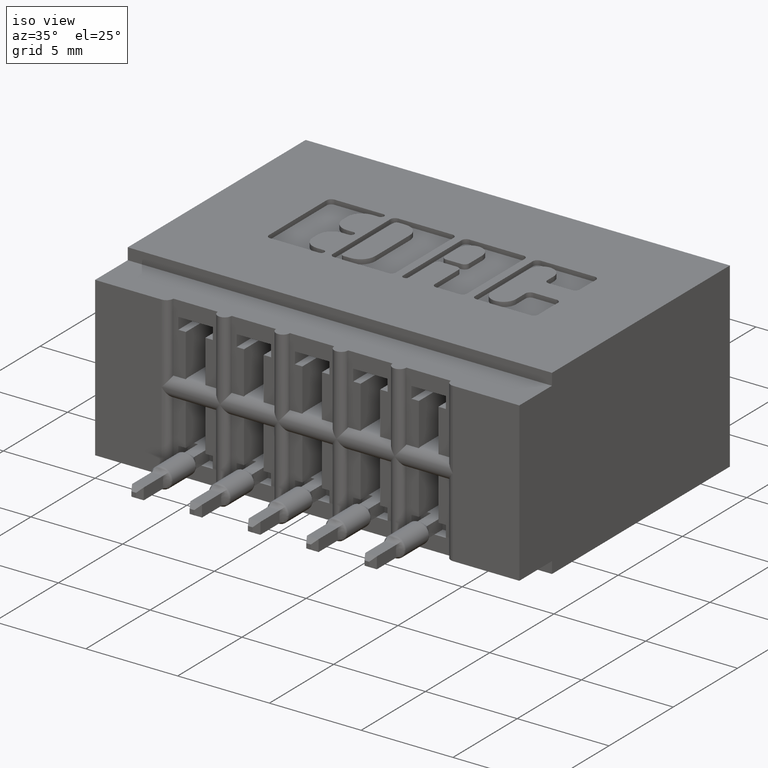
[diagram: clean part render]
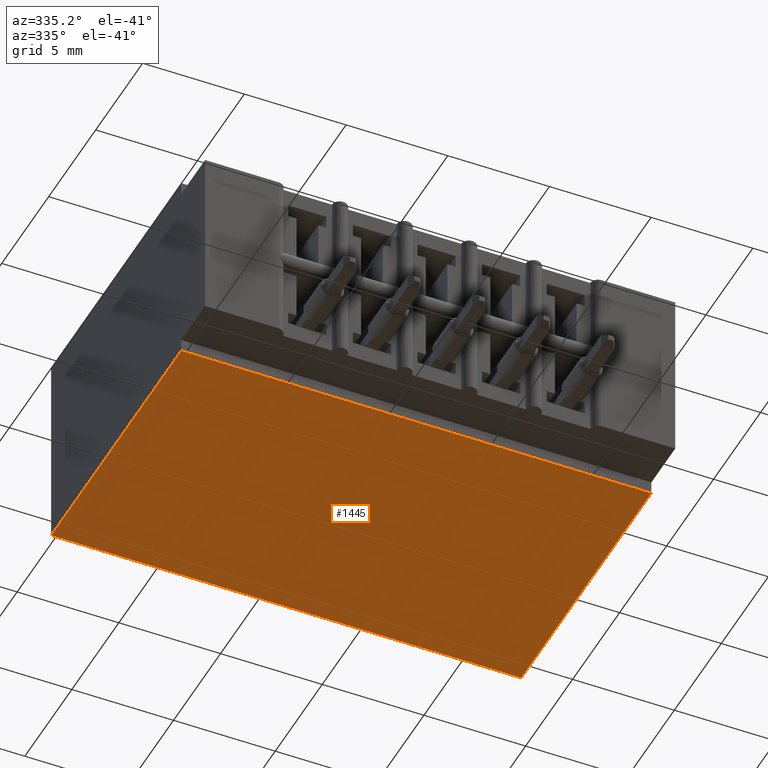
[diagram: tour spotlight — one face highlighted and labeled with its STEP entity id]
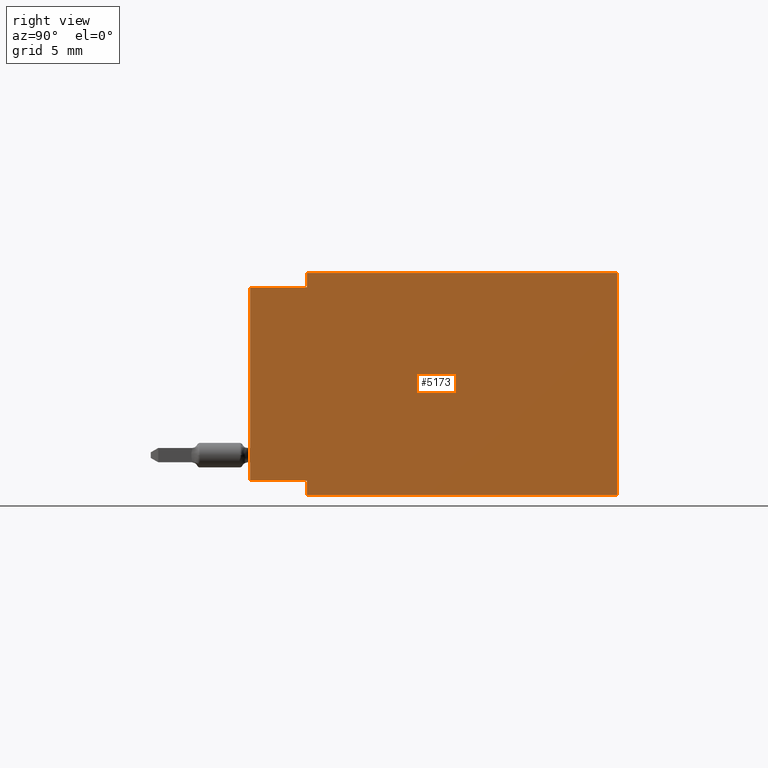
[diagram: tour spotlight — one face highlighted and labeled with its STEP entity id]
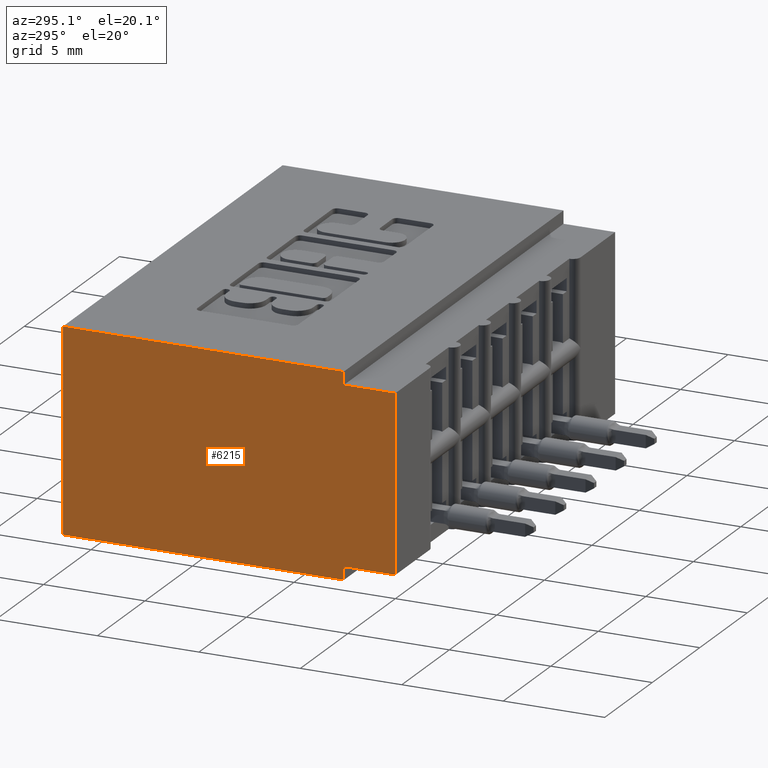
[diagram: tour spotlight — one face highlighted and labeled with its STEP entity id]
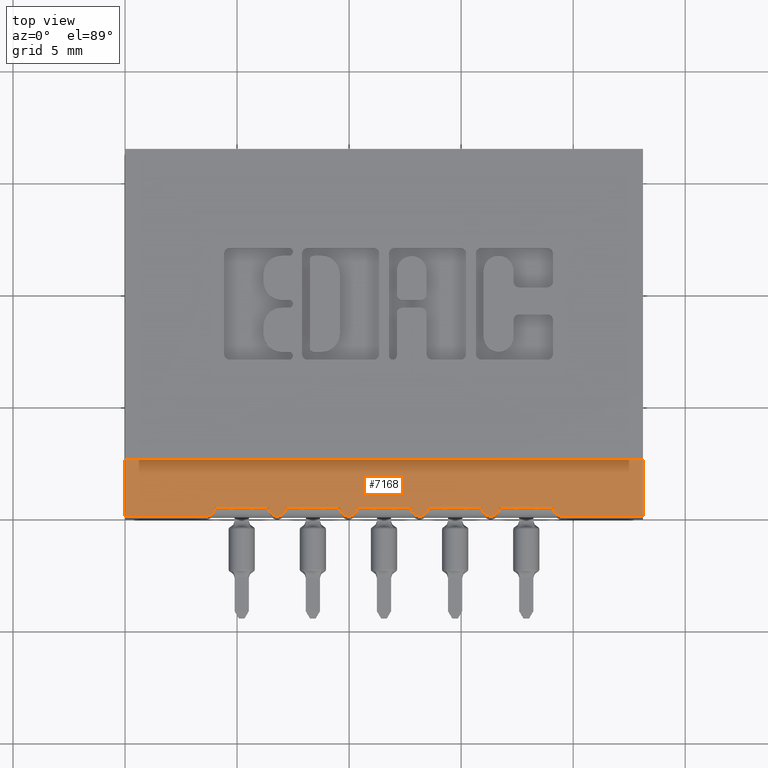
[diagram: tour spotlight — one face highlighted and labeled with its STEP entity id]
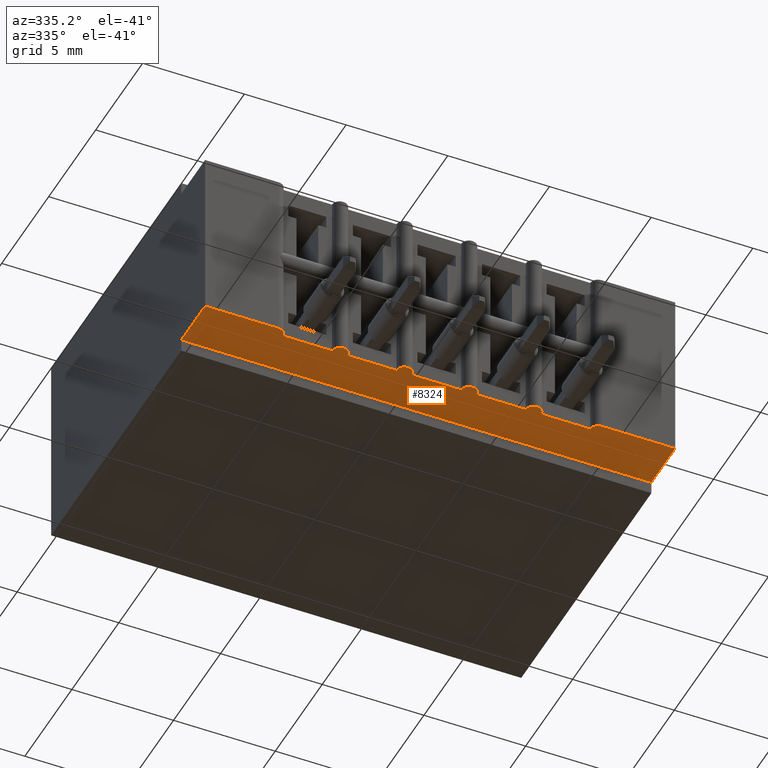
[diagram: tour spotlight — one face highlighted and labeled with its STEP entity id]
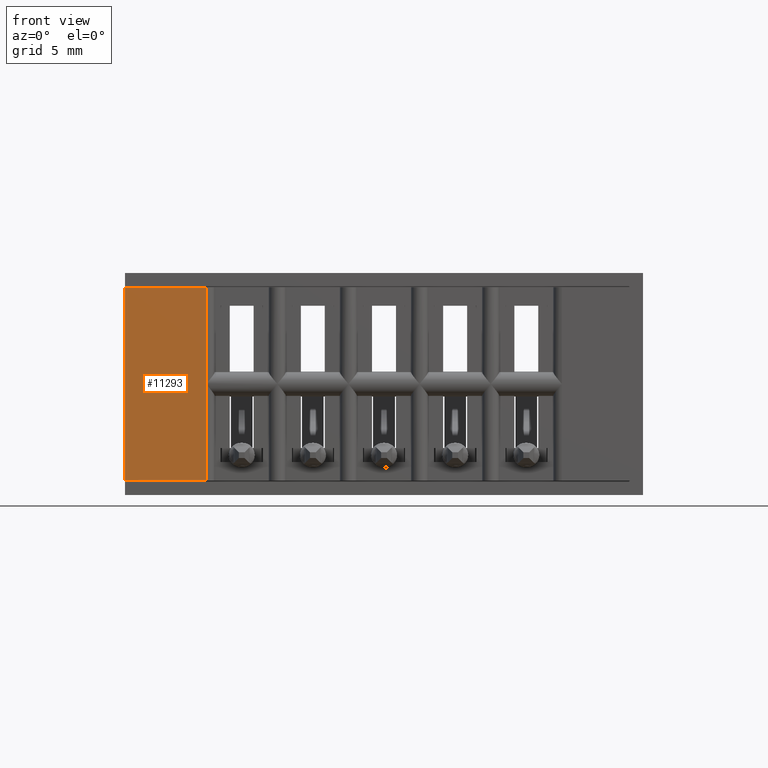
[diagram: tour spotlight — one face highlighted and labeled with its STEP entity id]
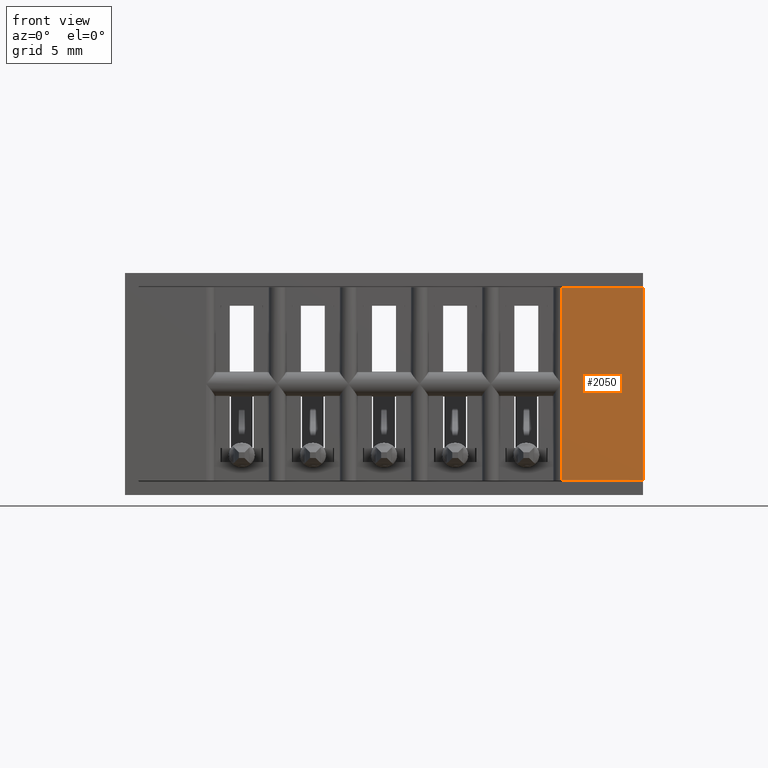
[diagram: tour spotlight — one face highlighted and labeled with its STEP entity id]
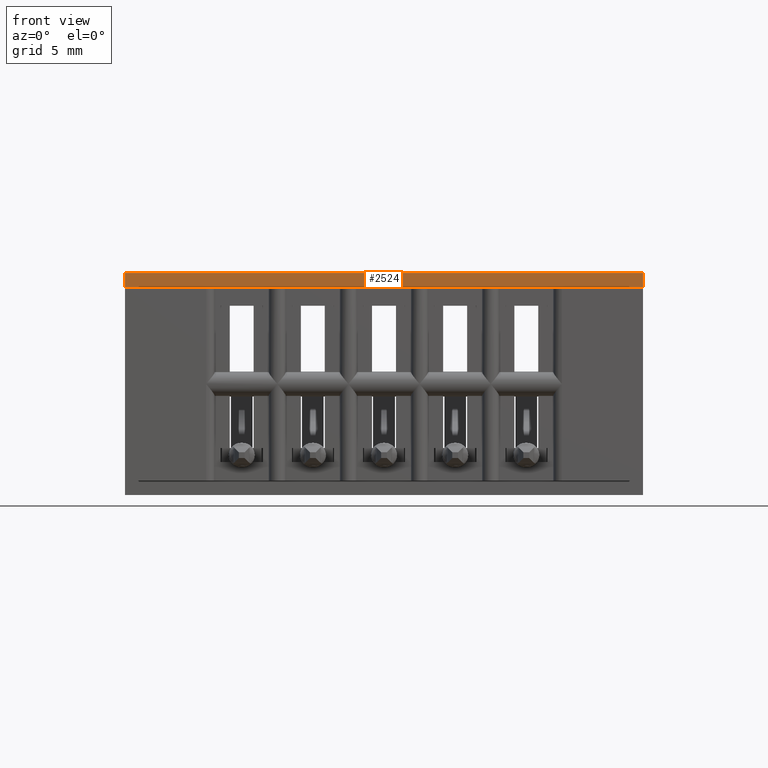
[diagram: tour spotlight — one face highlighted and labeled with its STEP entity id]
A machine part: a face-by-face anatomy tour. The part has 637 B-rep faces; the first image is the clean iso view, then the 8 largest visible faces are spotlighted one at a time (largest first), each with its STEP entity span.

Face 1 — auxiliary view, entity #1445. In plain terms, the highlighted planar face has unit normal (0, 0, 1).
Definition (entity closure, byte-faithful):
#1016 = ORIENTED_EDGE ( 'NONE', *, *, #8916, .T. ) ;
#1044 = AXIS2_PLACEMENT_3D ( 'NONE', #12008, #3142, #2166 ) ;
#1445 = ADVANCED_FACE ( 'NONE', ( #10201 ), #8074, .F. ) ;
#1832 = CARTESIAN_POINT ( 'NONE',  ( 0.9099999999999998090, 0.6449999999999999067, -0.3900000000000000133 ) ) ;
#2166 = DIRECTION ( 'NONE',  ( 1.000000000000000000, 0.0000000000000000000, -0.0000000000000000000 ) ) ;
#2194 = VECTOR ( 'NONE', #7791, 39.37007874015748143 ) ;
#2296 = DIRECTION ( 'NONE',  ( -0.0000000000000000000, -1.000000000000000000, -0.0000000000000000000 ) ) ;
#2491 = VECTOR ( 'NONE', #2296, 39.37007874015748143 ) ;
#2795 = ORIENTED_EDGE ( 'NONE', *, *, #5155, .T. ) ;
#3097 = VERTEX_POINT ( 'NONE', #4737 ) ;
#3142 = DIRECTION ( 'NONE',  ( 0.0000000000000000000, 0.0000000000000000000, 1.000000000000000000 ) ) ;
#3598 = VECTOR ( 'NONE', #6089, 39.37007874015748143 ) ;
#3825 = CARTESIAN_POINT ( 'NONE',  ( 0.0000000000000000000, 0.6449999999999999067, -0.3900000000000000133 ) ) ;
#4737 = CARTESIAN_POINT ( 'NONE',  ( 0.0000000000000000000, 0.1000000000000000056, -0.3900000000000000133 ) ) ;
#4747 = EDGE_CURVE ( 'NONE', #12412, #12582, #11559, .T. ) ;
#4838 = VECTOR ( 'NONE', #12266, 39.37007874015748143 ) ;
#5155 = EDGE_CURVE ( 'NONE', #7594, #3097, #6875, .T. ) ;
#5644 = CARTESIAN_POINT ( 'NONE',  ( 0.9099999999999998090, 0.6449999999999999067, -0.3900000000000000133 ) ) ;
#6089 = DIRECTION ( 'NONE',  ( -1.000000000000000000, -0.0000000000000000000, -0.0000000000000000000 ) ) ;
#6875 = LINE ( 'NONE', #11724, #3598 ) ;
#7594 = VERTEX_POINT ( 'NONE', #8899 ) ;
#7791 = DIRECTION ( 'NONE',  ( -0.0000000000000000000, -1.000000000000000000, -0.0000000000000000000 ) ) ;
#8074 = PLANE ( 'NONE',  #1044 ) ;
#8339 = CARTESIAN_POINT ( 'NONE',  ( 0.0000000000000000000, 0.6449999999999999067, -0.3900000000000000133 ) ) ;
#8899 = CARTESIAN_POINT ( 'NONE',  ( 0.9099999999999998090, 0.1000000000000000056, -0.3900000000000000133 ) ) ;
#8916 = EDGE_CURVE ( 'NONE', #12412, #7594, #10715, .T. ) ;
#9480 = ORIENTED_EDGE ( 'NONE', *, *, #4747, .F. ) ;
#10169 = CARTESIAN_POINT ( 'NONE',  ( 0.0000000000000000000, 0.6449999999999999067, -0.3900000000000000133 ) ) ;
#10201 = FACE_OUTER_BOUND ( 'NONE', #11110, .T. ) ;
#10715 = LINE ( 'NONE', #1832, #2491 ) ;
#10988 = EDGE_CURVE ( 'NONE', #12582, #3097, #12684, .T. ) ;
#11110 = EDGE_LOOP ( 'NONE', ( #1016, #2795, #12432, #9480 ) ) ;
#11559 = LINE ( 'NONE', #8339, #4838 ) ;
#11724 = CARTESIAN_POINT ( 'NONE',  ( 0.9099999999999998090, 0.1000000000000000056, -0.3900000000000000133 ) ) ;
#12008 = CARTESIAN_POINT ( 'NONE',  ( 0.0000000000000000000, 0.6449999999999999067, -0.3900000000000000133 ) ) ;
#12266 = DIRECTION ( 'NONE',  ( -1.000000000000000000, -0.0000000000000000000, -0.0000000000000000000 ) ) ;
#12412 = VERTEX_POINT ( 'NONE', #5644 ) ;
#12432 = ORIENTED_EDGE ( 'NONE', *, *, #10988, .F. ) ;
#12582 = VERTEX_POINT ( 'NONE', #10169 ) ;
#12684 = LINE ( 'NONE', #3825, #2194 ) ;

Face 2 — right view, entity #5173. In plain terms, the highlighted planar face has unit normal (-1, 0, 0).
Definition (entity closure, byte-faithful):
#69 = CARTESIAN_POINT ( 'NONE',  ( 0.9099999999999998090, 0.0000000000000000000, -0.3649999999999999911 ) ) ;
#247 = CARTESIAN_POINT ( 'NONE',  ( 0.9099999999999998090, 0.6449999999999999067, 0.0000000000000000000 ) ) ;
#299 = LINE ( 'NONE', #1273, #7556 ) ;
#731 = EDGE_CURVE ( 'NONE', #1680, #5775, #1043, .T. ) ;
#898 = VECTOR ( 'NONE', #3435, 39.37007874015748143 ) ;
#1043 = LINE ( 'NONE', #69, #3937 ) ;
#1093 = PLANE ( 'NONE',  #4220 ) ;
#1254 = LINE ( 'NONE', #11161, #11514 ) ;
#1273 = CARTESIAN_POINT ( 'NONE',  ( 0.9099999999999998090, 0.1000000000000000056, 0.0000000000000000000 ) ) ;
#1282 = LINE ( 'NONE', #247, #12277 ) ;
#1483 = CARTESIAN_POINT ( 'NONE',  ( 0.9099999999999998090, 0.6449999999999999067, 0.0000000000000000000 ) ) ;
#1488 = ORIENTED_EDGE ( 'NONE', *, *, #3722, .T. ) ;
#1680 = VERTEX_POINT ( 'NONE', #1826 ) ;
#1826 = CARTESIAN_POINT ( 'NONE',  ( 0.9099999999999998090, 0.0000000000000000000, -0.3649999999999999911 ) ) ;
#1832 = CARTESIAN_POINT ( 'NONE',  ( 0.9099999999999998090, 0.6449999999999999067, -0.3900000000000000133 ) ) ;
#1998 = VERTEX_POINT ( 'NONE', #8566 ) ;
#2055 = CARTESIAN_POINT ( 'NONE',  ( 0.9099999999999998090, 0.0000000000000000000, -0.02500000000000000486 ) ) ;
#2132 = CARTESIAN_POINT ( 'NONE',  ( 0.9099999999999998090, 0.1000000000000000056, -0.02500000000000000486 ) ) ;
#2133 = VECTOR ( 'NONE', #11953, 39.37007874015748143 ) ;
#2291 = ORIENTED_EDGE ( 'NONE', *, *, #731, .T. ) ;
#2296 = DIRECTION ( 'NONE',  ( -0.0000000000000000000, -1.000000000000000000, -0.0000000000000000000 ) ) ;
#2455 = CARTESIAN_POINT ( 'NONE',  ( 0.9099999999999998090, 0.6449999999999999067, 0.0000000000000000000 ) ) ;
#2491 = VECTOR ( 'NONE', #2296, 39.37007874015748143 ) ;
#2985 = ORIENTED_EDGE ( 'NONE', *, *, #8916, .F. ) ;
#3332 = EDGE_CURVE ( 'NONE', #4202, #1998, #11198, .T. ) ;
#3435 = DIRECTION ( 'NONE',  ( -0.0000000000000000000, -1.000000000000000000, -0.0000000000000000000 ) ) ;
#3722 = EDGE_CURVE ( 'NONE', #1998, #12517, #299, .T. ) ;
#3937 = VECTOR ( 'NONE', #4033, 39.37007874015748143 ) ;
#4033 = DIRECTION ( 'NONE',  ( 0.0000000000000000000, 1.000000000000000000, 0.0000000000000000000 ) ) ;
#4202 = VERTEX_POINT ( 'NONE', #2455 ) ;
#4220 = AXIS2_PLACEMENT_3D ( 'NONE', #11846, #6806, #7979 ) ;
#4456 = DIRECTION ( 'NONE',  ( 0.0000000000000000000, 0.0000000000000000000, -1.000000000000000000 ) ) ;
#4750 = LINE ( 'NONE', #7679, #10872 ) ;
#4790 = ORIENTED_EDGE ( 'NONE', *, *, #5582, .T. ) ;
#5173 = ADVANCED_FACE ( 'NONE', ( #9781 ), #1093, .F. ) ;
#5337 = EDGE_CURVE ( 'NONE', #4202, #12412, #1282, .T. ) ;
#5582 = EDGE_CURVE ( 'NONE', #6784, #1680, #9703, .T. ) ;
#5644 = CARTESIAN_POINT ( 'NONE',  ( 0.9099999999999998090, 0.6449999999999999067, -0.3900000000000000133 ) ) ;
#5775 = VERTEX_POINT ( 'NONE', #7184 ) ;
#6100 = ORIENTED_EDGE ( 'NONE', *, *, #10352, .T. ) ;
#6515 = DIRECTION ( 'NONE',  ( -0.0000000000000000000, -0.0000000000000000000, -1.000000000000000000 ) ) ;
#6784 = VERTEX_POINT ( 'NONE', #2055 ) ;
#6806 = DIRECTION ( 'NONE',  ( -1.000000000000000000, 0.0000000000000000000, 0.0000000000000000000 ) ) ;
#6924 = CARTESIAN_POINT ( 'NONE',  ( 0.9099999999999998090, 0.0000000000000000000, 0.0000000000000000000 ) ) ;
#7184 = CARTESIAN_POINT ( 'NONE',  ( 0.9099999999999998090, 0.1000000000000000056, -0.3649999999999999911 ) ) ;
#7260 = DIRECTION ( 'NONE',  ( 0.0000000000000000000, 0.0000000000000000000, -1.000000000000000000 ) ) ;
#7287 = ORIENTED_EDGE ( 'NONE', *, *, #3332, .T. ) ;
#7556 = VECTOR ( 'NONE', #4456, 39.37007874015748143 ) ;
#7594 = VERTEX_POINT ( 'NONE', #8899 ) ;
#7679 = CARTESIAN_POINT ( 'NONE',  ( 0.9099999999999998090, 0.1000000000000000056, -0.3900000000000000133 ) ) ;
#7979 = DIRECTION ( 'NONE',  ( 0.0000000000000000000, 0.0000000000000000000, 1.000000000000000000 ) ) ;
#8566 = CARTESIAN_POINT ( 'NONE',  ( 0.9099999999999998090, 0.1000000000000000056, 0.0000000000000000000 ) ) ;
#8899 = CARTESIAN_POINT ( 'NONE',  ( 0.9099999999999998090, 0.1000000000000000056, -0.3900000000000000133 ) ) ;
#8916 = EDGE_CURVE ( 'NONE', #12412, #7594, #10715, .T. ) ;
#9165 = DIRECTION ( 'NONE',  ( -0.0000000000000000000, -1.000000000000000000, -0.0000000000000000000 ) ) ;
#9222 = ORIENTED_EDGE ( 'NONE', *, *, #5337, .F. ) ;
#9703 = LINE ( 'NONE', #6924, #2133 ) ;
#9781 = FACE_OUTER_BOUND ( 'NONE', #9788, .T. ) ;
#9788 = EDGE_LOOP ( 'NONE', ( #1488, #11079, #4790, #2291, #6100, #2985, #9222, #7287 ) ) ;
#10352 = EDGE_CURVE ( 'NONE', #5775, #7594, #4750, .T. ) ;
#10715 = LINE ( 'NONE', #1832, #2491 ) ;
#10872 = VECTOR ( 'NONE', #6515, 39.37007874015748143 ) ;
#11079 = ORIENTED_EDGE ( 'NONE', *, *, #11527, .T. ) ;
#11161 = CARTESIAN_POINT ( 'NONE',  ( 0.9099999999999998090, 0.0000000000000000000, -0.02500000000000000486 ) ) ;
#11198 = LINE ( 'NONE', #1483, #898 ) ;
#11514 = VECTOR ( 'NONE', #9165, 39.37007874015748143 ) ;
#11527 = EDGE_CURVE ( 'NONE', #12517, #6784, #1254, .T. ) ;
#11846 = CARTESIAN_POINT ( 'NONE',  ( 0.9099999999999998090, 0.6449999999999999067, 0.0000000000000000000 ) ) ;
#11953 = DIRECTION ( 'NONE',  ( 0.0000000000000000000, 0.0000000000000000000, -1.000000000000000000 ) ) ;
#12277 = VECTOR ( 'NONE', #7260, 39.37007874015748143 ) ;
#12412 = VERTEX_POINT ( 'NONE', #5644 ) ;
#12517 = VERTEX_POINT ( 'NONE', #2132 ) ;

Face 3 — auxiliary view, entity #6215. In plain terms, the highlighted planar face has unit normal (1, 0, 0).
Definition (entity closure, byte-faithful):
#601 = EDGE_CURVE ( 'NONE', #7412, #4898, #9526, .T. ) ;
#637 = CARTESIAN_POINT ( 'NONE',  ( 0.0000000000000000000, 0.0000000000000000000, 0.0000000000000000000 ) ) ;
#740 = EDGE_CURVE ( 'NONE', #9851, #4865, #11922, .T. ) ;
#1126 = FACE_OUTER_BOUND ( 'NONE', #11125, .T. ) ;
#1220 = LINE ( 'NONE', #12101, #1423 ) ;
#1423 = VECTOR ( 'NONE', #5187, 39.37007874015748143 ) ;
#1449 = DIRECTION ( 'NONE',  ( 0.0000000000000000000, 1.000000000000000000, 0.0000000000000000000 ) ) ;
#1512 = DIRECTION ( 'NONE',  ( -0.0000000000000000000, -1.000000000000000000, -0.0000000000000000000 ) ) ;
#1787 = ORIENTED_EDGE ( 'NONE', *, *, #2228, .F. ) ;
#1869 = VERTEX_POINT ( 'NONE', #3254 ) ;
#2005 = CARTESIAN_POINT ( 'NONE',  ( 0.0000000000000000000, 0.1000000000000000056, -0.02500000000000000486 ) ) ;
#2194 = VECTOR ( 'NONE', #7791, 39.37007874015748143 ) ;
#2228 = EDGE_CURVE ( 'NONE', #4865, #10949, #1220, .T. ) ;
#2699 = VECTOR ( 'NONE', #7015, 39.37007874015748143 ) ;
#2909 = ORIENTED_EDGE ( 'NONE', *, *, #11438, .F. ) ;
#3097 = VERTEX_POINT ( 'NONE', #4737 ) ;
#3198 = ORIENTED_EDGE ( 'NONE', *, *, #10988, .T. ) ;
#3254 = CARTESIAN_POINT ( 'NONE',  ( 0.0000000000000000000, 0.1000000000000000056, -0.3649999999999999911 ) ) ;
#3658 = VECTOR ( 'NONE', #1512, 39.37007874015748143 ) ;
#3825 = CARTESIAN_POINT ( 'NONE',  ( 0.0000000000000000000, 0.6449999999999999067, -0.3900000000000000133 ) ) ;
#3940 = VECTOR ( 'NONE', #8199, 39.37007874015748143 ) ;
#4070 = ORIENTED_EDGE ( 'NONE', *, *, #601, .T. ) ;
#4601 = DIRECTION ( 'NONE',  ( -0.0000000000000000000, -0.0000000000000000000, 1.000000000000000000 ) ) ;
#4737 = CARTESIAN_POINT ( 'NONE',  ( 0.0000000000000000000, 0.1000000000000000056, -0.3900000000000000133 ) ) ;
#4865 = VERTEX_POINT ( 'NONE', #8719 ) ;
#4868 = ORIENTED_EDGE ( 'NONE', *, *, #7445, .F. ) ;
#4898 = VERTEX_POINT ( 'NONE', #11748 ) ;
#5087 = DIRECTION ( 'NONE',  ( 1.000000000000000000, -0.0000000000000000000, 0.0000000000000000000 ) ) ;
#5187 = DIRECTION ( 'NONE',  ( 0.0000000000000000000, 0.0000000000000000000, -1.000000000000000000 ) ) ;
#6182 = LINE ( 'NONE', #9162, #3940 ) ;
#6215 = ADVANCED_FACE ( 'NONE', ( #1126 ), #7036, .F. ) ;
#6449 = LINE ( 'NONE', #11226, #3658 ) ;
#6476 = ORIENTED_EDGE ( 'NONE', *, *, #8946, .F. ) ;
#6583 = CARTESIAN_POINT ( 'NONE',  ( 0.0000000000000000000, 0.0000000000000000000, -0.3649999999999999911 ) ) ;
#6624 = VECTOR ( 'NONE', #7385, 39.37007874015748143 ) ;
#7015 = DIRECTION ( 'NONE',  ( -0.0000000000000000000, -1.000000000000000000, -0.0000000000000000000 ) ) ;
#7036 = PLANE ( 'NONE',  #11776 ) ;
#7385 = DIRECTION ( 'NONE',  ( -0.0000000000000000000, -0.0000000000000000000, -1.000000000000000000 ) ) ;
#7412 = VERTEX_POINT ( 'NONE', #6583 ) ;
#7445 = EDGE_CURVE ( 'NONE', #7412, #1869, #11493, .T. ) ;
#7791 = DIRECTION ( 'NONE',  ( -0.0000000000000000000, -1.000000000000000000, -0.0000000000000000000 ) ) ;
#8117 = ORIENTED_EDGE ( 'NONE', *, *, #740, .F. ) ;
#8199 = DIRECTION ( 'NONE',  ( -0.0000000000000000000, -0.0000000000000000000, 1.000000000000000000 ) ) ;
#8211 = EDGE_CURVE ( 'NONE', #1869, #3097, #8420, .T. ) ;
#8306 = ORIENTED_EDGE ( 'NONE', *, *, #8211, .F. ) ;
#8420 = LINE ( 'NONE', #12348, #6624 ) ;
#8719 = CARTESIAN_POINT ( 'NONE',  ( 0.0000000000000000000, 0.1000000000000000056, 0.0000000000000000000 ) ) ;
#8946 = EDGE_CURVE ( 'NONE', #12582, #9851, #6182, .T. ) ;
#9162 = CARTESIAN_POINT ( 'NONE',  ( 0.0000000000000000000, 0.6449999999999999067, 0.0000000000000000000 ) ) ;
#9428 = CARTESIAN_POINT ( 'NONE',  ( 0.0000000000000000000, 0.0000000000000000000, -0.3649999999999999911 ) ) ;
#9526 = LINE ( 'NONE', #637, #11169 ) ;
#9731 = VECTOR ( 'NONE', #1449, 39.37007874015748143 ) ;
#9851 = VERTEX_POINT ( 'NONE', #10403 ) ;
#10138 = DIRECTION ( 'NONE',  ( 0.0000000000000000000, 0.0000000000000000000, -1.000000000000000000 ) ) ;
#10169 = CARTESIAN_POINT ( 'NONE',  ( 0.0000000000000000000, 0.6449999999999999067, -0.3900000000000000133 ) ) ;
#10230 = CARTESIAN_POINT ( 'NONE',  ( 0.0000000000000000000, 0.6449999999999999067, 0.0000000000000000000 ) ) ;
#10403 = CARTESIAN_POINT ( 'NONE',  ( 0.0000000000000000000, 0.6449999999999999067, 0.0000000000000000000 ) ) ;
#10949 = VERTEX_POINT ( 'NONE', #2005 ) ;
#10988 = EDGE_CURVE ( 'NONE', #12582, #3097, #12684, .T. ) ;
#11125 = EDGE_LOOP ( 'NONE', ( #4070, #2909, #1787, #8117, #6476, #3198, #8306, #4868 ) ) ;
#11169 = VECTOR ( 'NONE', #4601, 39.37007874015748143 ) ;
#11226 = CARTESIAN_POINT ( 'NONE',  ( 0.0000000000000000000, 0.0000000000000000000, -0.02500000000000000486 ) ) ;
#11438 = EDGE_CURVE ( 'NONE', #10949, #4898, #6449, .T. ) ;
#11493 = LINE ( 'NONE', #9428, #9731 ) ;
#11748 = CARTESIAN_POINT ( 'NONE',  ( 0.0000000000000000000, 0.0000000000000000000, -0.02500000000000000486 ) ) ;
#11776 = AXIS2_PLACEMENT_3D ( 'NONE', #12068, #5087, #10138 ) ;
#11922 = LINE ( 'NONE', #10230, #2699 ) ;
#12068 = CARTESIAN_POINT ( 'NONE',  ( 0.0000000000000000000, 0.6449999999999999067, 0.0000000000000000000 ) ) ;
#12101 = CARTESIAN_POINT ( 'NONE',  ( 0.0000000000000000000, 0.1000000000000000056, 0.0000000000000000000 ) ) ;
#12348 = CARTESIAN_POINT ( 'NONE',  ( 0.0000000000000000000, 0.1000000000000000056, -0.3900000000000000133 ) ) ;
#12582 = VERTEX_POINT ( 'NONE', #10169 ) ;
#12684 = LINE ( 'NONE', #3825, #2194 ) ;

Face 4 — top view, entity #7168. In plain terms, the highlighted planar face has unit normal (0, 0, -1).
Definition (entity closure, byte-faithful):
#141 = DIRECTION ( 'NONE',  ( 1.000000000000000000, -0.0000000000000000000, -2.307304048702925122E-16 ) ) ;
#154 = VECTOR ( 'NONE', #3295, 39.37007874015748143 ) ;
#160 = LINE ( 'NONE', #7824, #5272 ) ;
#333 = ORIENTED_EDGE ( 'NONE', *, *, #11044, .F. ) ;
#632 = CARTESIAN_POINT ( 'NONE',  ( 0.7524999999999997247, 0.01499999999999997169, -0.02500000000000000486 ) ) ;
#772 = EDGE_CURVE ( 'NONE', #12444, #11217, #3724, .T. ) ;
#810 = VERTEX_POINT ( 'NONE', #4595 ) ;
#871 = VERTEX_POINT ( 'NONE', #632 ) ;
#873 = VERTEX_POINT ( 'NONE', #11393 ) ;
#992 = CIRCLE ( 'NONE', #2243, 0.01499999999999997689 ) ;
#1143 = AXIS2_PLACEMENT_3D ( 'NONE', #4763, #8718, #3788 ) ;
#1170 = EDGE_CURVE ( 'NONE', #12517, #10949, #12335, .T. ) ;
#1175 = CARTESIAN_POINT ( 'NONE',  ( 0.6574999999999997513, 0.01499999999999997169, -0.02500000000000000486 ) ) ;
#1195 = DIRECTION ( 'NONE',  ( 1.000000000000000000, -0.0000000000000000000, -2.307304048702925122E-16 ) ) ;
#1254 = LINE ( 'NONE', #11161, #11514 ) ;
#1357 = ORIENTED_EDGE ( 'NONE', *, *, #6712, .T. ) ;
#1396 = DIRECTION ( 'NONE',  ( -1.000000000000000000, -0.0000000000000000000, -0.0000000000000000000 ) ) ;
#1512 = DIRECTION ( 'NONE',  ( -0.0000000000000000000, -1.000000000000000000, -0.0000000000000000000 ) ) ;
#1553 = ORIENTED_EDGE ( 'NONE', *, *, #10055, .T. ) ;
#1755 = VECTOR ( 'NONE', #5373, 39.37007874015748143 ) ;
#1759 = EDGE_CURVE ( 'NONE', #3515, #10543, #992, .T. ) ;
#1944 = VECTOR ( 'NONE', #4977, 39.37007874015748143 ) ;
#2005 = CARTESIAN_POINT ( 'NONE',  ( 0.0000000000000000000, 0.1000000000000000056, -0.02500000000000000486 ) ) ;
#2055 = CARTESIAN_POINT ( 'NONE',  ( 0.9099999999999998090, 0.0000000000000000000, -0.02500000000000000486 ) ) ;
#2114 = EDGE_CURVE ( 'NONE', #5793, #11010, #9706, .T. ) ;
#2132 = CARTESIAN_POINT ( 'NONE',  ( 0.9099999999999998090, 0.1000000000000000056, -0.02500000000000000486 ) ) ;
#2243 = AXIS2_PLACEMENT_3D ( 'NONE', #4937, #2866, #2678 ) ;
#2247 = DIRECTION ( 'NONE',  ( -1.000000000000000000, -0.0000000000000000000, -0.0000000000000000000 ) ) ;
#2287 = AXIS2_PLACEMENT_3D ( 'NONE', #6973, #4828, #10912 ) ;
#2432 = ORIENTED_EDGE ( 'NONE', *, *, #3721, .F. ) ;
#2521 = DIRECTION ( 'NONE',  ( -0.0000000000000000000, 0.0000000000000000000, 1.000000000000000000 ) ) ;
#2544 = EDGE_LOOP ( 'NONE', ( #11546, #4153, #1553, #2432, #7863, #3031, #9339, #7095, #333, #8730, #6963, #10851, #7511, #11869, #1357, #8538 ) ) ;
#2623 = VECTOR ( 'NONE', #4048, 39.37007874015748143 ) ;
#2678 = DIRECTION ( 'NONE',  ( 1.000000000000000000, 0.0000000000000000000, 0.0000000000000000000 ) ) ;
#2786 = DIRECTION ( 'NONE',  ( -0.0000000000000000000, 0.0000000000000000000, 1.000000000000000000 ) ) ;
#2866 = DIRECTION ( 'NONE',  ( -0.0000000000000000000, 0.0000000000000000000, 1.000000000000000000 ) ) ;
#2903 = CARTESIAN_POINT ( 'NONE',  ( 0.6274999999999996136, 0.01499999999999997169, -0.02500000000000000486 ) ) ;
#3031 = ORIENTED_EDGE ( 'NONE', *, *, #1170, .T. ) ;
#3295 = DIRECTION ( 'NONE',  ( 1.000000000000000000, -0.0000000000000000000, -2.307304048702925122E-16 ) ) ;
#3481 = CARTESIAN_POINT ( 'NONE',  ( 0.9099999999999998090, 0.0000000000000000000, -0.02500000000000000486 ) ) ;
#3515 = VERTEX_POINT ( 'NONE', #2903 ) ;
#3591 = EDGE_CURVE ( 'NONE', #11217, #10745, #5105, .T. ) ;
#3658 = VECTOR ( 'NONE', #1512, 39.37007874015748143 ) ;
#3721 = EDGE_CURVE ( 'NONE', #6784, #8319, #11184, .T. ) ;
#3724 = CIRCLE ( 'NONE', #6221, 0.01499999999999997689 ) ;
#3788 = DIRECTION ( 'NONE',  ( 1.000000000000000000, 0.0000000000000000000, 0.0000000000000000000 ) ) ;
#3920 = PLANE ( 'NONE',  #2287 ) ;
#4048 = DIRECTION ( 'NONE',  ( 1.000000000000000000, -0.0000000000000000000, -2.307304048702925122E-16 ) ) ;
#4073 = EDGE_CURVE ( 'NONE', #11010, #12444, #160, .T. ) ;
#4099 = CARTESIAN_POINT ( 'NONE',  ( 0.5589999999999997193, 0.01499999999999999424, -0.02500000000000003608 ) ) ;
#4153 = ORIENTED_EDGE ( 'NONE', *, *, #11397, .T. ) ;
#4581 = CARTESIAN_POINT ( 'NONE',  ( 0.9099999999999998090, 0.1000000000000000056, -0.02500000000000000486 ) ) ;
#4595 = CARTESIAN_POINT ( 'NONE',  ( 0.1424999999999997102, 0.0000000000000000000, -0.02500000000000000486 ) ) ;
#4654 = CARTESIAN_POINT ( 'NONE',  ( 0.7674999999999996270, 0.0000000000000000000, -0.02500000000000000486 ) ) ;
#4763 = CARTESIAN_POINT ( 'NONE',  ( 0.7674999999999996270, 0.01499999999999997169, -0.02500000000000000486 ) ) ;
#4787 = DIRECTION ( 'NONE',  ( 1.000000000000000000, 0.0000000000000000000, 0.0000000000000000000 ) ) ;
#4828 = DIRECTION ( 'NONE',  ( 0.0000000000000000000, 0.0000000000000000000, -1.000000000000000000 ) ) ;
#4898 = VERTEX_POINT ( 'NONE', #11748 ) ;
#4937 = CARTESIAN_POINT ( 'NONE',  ( 0.6424999999999996270, 0.01499999999999997169, -0.02500000000000000486 ) ) ;
#4967 = VECTOR ( 'NONE', #141, 39.37007874015748143 ) ;
#4977 = DIRECTION ( 'NONE',  ( 1.000000000000000000, -0.0000000000000000000, -2.307304048702925122E-16 ) ) ;
#5105 = LINE ( 'NONE', #6926, #1944 ) ;
#5119 = DIRECTION ( 'NONE',  ( 1.000000000000000000, 0.0000000000000000000, 0.0000000000000000000 ) ) ;
#5272 = VECTOR ( 'NONE', #1195, 39.37007874015748143 ) ;
#5355 = CARTESIAN_POINT ( 'NONE',  ( 0.1424999999999997102, 0.01499999999999997169, -0.02500000000000000486 ) ) ;
#5373 = DIRECTION ( 'NONE',  ( -1.000000000000000000, -0.0000000000000000000, -0.0000000000000000000 ) ) ;
#5438 = LINE ( 'NONE', #12159, #1755 ) ;
#5632 = CARTESIAN_POINT ( 'NONE',  ( 0.3924999999999996825, 0.01499999999999997169, -0.02500000000000000486 ) ) ;
#5688 = VECTOR ( 'NONE', #2247, 39.37007874015748143 ) ;
#5724 = AXIS2_PLACEMENT_3D ( 'NONE', #5355, #8279, #5119 ) ;
#5777 = AXIS2_PLACEMENT_3D ( 'NONE', #12627, #2786, #6749 ) ;
#5793 = VERTEX_POINT ( 'NONE', #9246 ) ;
#6221 = AXIS2_PLACEMENT_3D ( 'NONE', #5632, #2521, #7643 ) ;
#6449 = LINE ( 'NONE', #11226, #3658 ) ;
#6556 = EDGE_CURVE ( 'NONE', #10761, #3515, #10120, .T. ) ;
#6712 = EDGE_CURVE ( 'NONE', #10745, #10761, #10341, .T. ) ;
#6749 = DIRECTION ( 'NONE',  ( 1.000000000000000000, 0.0000000000000000000, 0.0000000000000000000 ) ) ;
#6784 = VERTEX_POINT ( 'NONE', #2055 ) ;
#6926 = CARTESIAN_POINT ( 'NONE',  ( 0.4339999999999996638, 0.01499999999999999424, -0.02500000000000003608 ) ) ;
#6963 = ORIENTED_EDGE ( 'NONE', *, *, #2114, .T. ) ;
#6973 = CARTESIAN_POINT ( 'NONE',  ( 0.9099999999999998090, 0.0000000000000000000, -0.02500000000000000486 ) ) ;
#7095 = ORIENTED_EDGE ( 'NONE', *, *, #9414, .F. ) ;
#7102 = CARTESIAN_POINT ( 'NONE',  ( 0.6839999999999997193, 0.01499999999999999424, -0.02500000000000003608 ) ) ;
#7168 = ADVANCED_FACE ( 'NONE', ( #10787 ), #3920, .F. ) ;
#7407 = CARTESIAN_POINT ( 'NONE',  ( 0.5174999999999996270, 0.01499999999999997169, -0.02500000000000000486 ) ) ;
#7511 = ORIENTED_EDGE ( 'NONE', *, *, #772, .T. ) ;
#7643 = DIRECTION ( 'NONE',  ( 1.000000000000000000, 0.0000000000000000000, 0.0000000000000000000 ) ) ;
#7824 = CARTESIAN_POINT ( 'NONE',  ( 0.3089999999999997193, 0.01499999999999999424, -0.02500000000000003608 ) ) ;
#7850 = CARTESIAN_POINT ( 'NONE',  ( 0.3774999999999996692, 0.01499999999999997169, -0.02500000000000000486 ) ) ;
#7863 = ORIENTED_EDGE ( 'NONE', *, *, #11527, .F. ) ;
#8040 = CARTESIAN_POINT ( 'NONE',  ( 0.2824999999999996958, 0.01499999999999997169, -0.02500000000000000486 ) ) ;
#8279 = DIRECTION ( 'NONE',  ( 0.0000000000000000000, -0.0000000000000000000, -1.000000000000000000 ) ) ;
#8319 = VERTEX_POINT ( 'NONE', #4654 ) ;
#8421 = LINE ( 'NONE', #10294, #154 ) ;
#8538 = ORIENTED_EDGE ( 'NONE', *, *, #6556, .T. ) ;
#8718 = DIRECTION ( 'NONE',  ( -0.0000000000000000000, 0.0000000000000000000, 1.000000000000000000 ) ) ;
#8730 = ORIENTED_EDGE ( 'NONE', *, *, #12685, .T. ) ;
#8971 = LINE ( 'NONE', #7102, #2623 ) ;
#9106 = AXIS2_PLACEMENT_3D ( 'NONE', #7407, #9275, #4787 ) ;
#9165 = DIRECTION ( 'NONE',  ( -0.0000000000000000000, -1.000000000000000000, -0.0000000000000000000 ) ) ;
#9246 = CARTESIAN_POINT ( 'NONE',  ( 0.2524999999999996692, 0.01499999999999997169, -0.02500000000000000486 ) ) ;
#9275 = DIRECTION ( 'NONE',  ( -0.0000000000000000000, 0.0000000000000000000, 1.000000000000000000 ) ) ;
#9339 = ORIENTED_EDGE ( 'NONE', *, *, #11438, .T. ) ;
#9407 = CARTESIAN_POINT ( 'NONE',  ( 0.5324999999999997513, 0.01499999999999997169, -0.02500000000000000486 ) ) ;
#9414 = EDGE_CURVE ( 'NONE', #810, #4898, #5438, .T. ) ;
#9537 = CARTESIAN_POINT ( 'NONE',  ( 0.5024999999999996136, 0.01499999999999997169, -0.02500000000000000486 ) ) ;
#9706 = CIRCLE ( 'NONE', #5777, 0.01500000000000001159 ) ;
#9738 = VECTOR ( 'NONE', #1396, 39.37007874015748143 ) ;
#10044 = CIRCLE ( 'NONE', #1143, 0.01499999999999997689 ) ;
#10055 = EDGE_CURVE ( 'NONE', #871, #8319, #10044, .T. ) ;
#10120 = LINE ( 'NONE', #4099, #4967 ) ;
#10294 = CARTESIAN_POINT ( 'NONE',  ( 0.1839999999999996916, 0.01499999999999999424, -0.02500000000000003608 ) ) ;
#10341 = CIRCLE ( 'NONE', #9106, 0.01499999999999997689 ) ;
#10486 = CIRCLE ( 'NONE', #5724, 0.01500000000000001159 ) ;
#10543 = VERTEX_POINT ( 'NONE', #1175 ) ;
#10745 = VERTEX_POINT ( 'NONE', #9537 ) ;
#10761 = VERTEX_POINT ( 'NONE', #9407 ) ;
#10787 = FACE_OUTER_BOUND ( 'NONE', #2544, .T. ) ;
#10851 = ORIENTED_EDGE ( 'NONE', *, *, #4073, .T. ) ;
#10912 = DIRECTION ( 'NONE',  ( -1.000000000000000000, 0.0000000000000000000, -0.0000000000000000000 ) ) ;
#10949 = VERTEX_POINT ( 'NONE', #2005 ) ;
#11010 = VERTEX_POINT ( 'NONE', #8040 ) ;
#11044 = EDGE_CURVE ( 'NONE', #873, #810, #10486, .T. ) ;
#11161 = CARTESIAN_POINT ( 'NONE',  ( 0.9099999999999998090, 0.0000000000000000000, -0.02500000000000000486 ) ) ;
#11184 = LINE ( 'NONE', #3481, #5688 ) ;
#11217 = VERTEX_POINT ( 'NONE', #12523 ) ;
#11226 = CARTESIAN_POINT ( 'NONE',  ( 0.0000000000000000000, 0.0000000000000000000, -0.02500000000000000486 ) ) ;
#11393 = CARTESIAN_POINT ( 'NONE',  ( 0.1574999999999997236, 0.01499999999999997169, -0.02500000000000000486 ) ) ;
#11397 = EDGE_CURVE ( 'NONE', #10543, #871, #8971, .T. ) ;
#11438 = EDGE_CURVE ( 'NONE', #10949, #4898, #6449, .T. ) ;
#11514 = VECTOR ( 'NONE', #9165, 39.37007874015748143 ) ;
#11527 = EDGE_CURVE ( 'NONE', #12517, #6784, #1254, .T. ) ;
#11546 = ORIENTED_EDGE ( 'NONE', *, *, #1759, .T. ) ;
#11748 = CARTESIAN_POINT ( 'NONE',  ( 0.0000000000000000000, 0.0000000000000000000, -0.02500000000000000486 ) ) ;
#11869 = ORIENTED_EDGE ( 'NONE', *, *, #3591, .T. ) ;
#12159 = CARTESIAN_POINT ( 'NONE',  ( 0.9099999999999998090, 0.0000000000000000000, -0.02500000000000000486 ) ) ;
#12335 = LINE ( 'NONE', #4581, #9738 ) ;
#12444 = VERTEX_POINT ( 'NONE', #7850 ) ;
#12517 = VERTEX_POINT ( 'NONE', #2132 ) ;
#12523 = CARTESIAN_POINT ( 'NONE',  ( 0.4074999999999996958, 0.01499999999999997169, -0.02500000000000000486 ) ) ;
#12627 = CARTESIAN_POINT ( 'NONE',  ( 0.2674999999999996825, 0.01499999999999997169, -0.02500000000000000486 ) ) ;
#12685 = EDGE_CURVE ( 'NONE', #873, #5793, #8421, .T. ) ;

Face 5 — auxiliary view, entity #8324. In plain terms, the highlighted planar face has unit normal (0, 0, 1).
Definition (entity closure, byte-faithful):
#69 = CARTESIAN_POINT ( 'NONE',  ( 0.9099999999999998090, 0.0000000000000000000, -0.3649999999999999911 ) ) ;
#94 = AXIS2_PLACEMENT_3D ( 'NONE', #6791, #1856, #5815 ) ;
#104 = CARTESIAN_POINT ( 'NONE',  ( 0.5324999999999997513, 0.01499999999999997169, -0.3649999999999999911 ) ) ;
#113 = EDGE_CURVE ( 'NONE', #12596, #10334, #3308, .T. ) ;
#345 = EDGE_CURVE ( 'NONE', #9507, #10467, #7245, .T. ) ;
#454 = LINE ( 'NONE', #1235, #2149 ) ;
#579 = CARTESIAN_POINT ( 'NONE',  ( 0.5174999999999996270, 0.01499999999999997169, -0.3649999999999999911 ) ) ;
#580 = DIRECTION ( 'NONE',  ( 1.000000000000000000, -0.0000000000000000000, -2.307304048702925122E-16 ) ) ;
#731 = EDGE_CURVE ( 'NONE', #1680, #5775, #1043, .T. ) ;
#939 = DIRECTION ( 'NONE',  ( 1.000000000000000000, -0.0000000000000000000, -2.307304048702925122E-16 ) ) ;
#943 = VECTOR ( 'NONE', #580, 39.37007874015748143 ) ;
#1035 = EDGE_CURVE ( 'NONE', #1680, #10334, #11952, .T. ) ;
#1043 = LINE ( 'NONE', #69, #3937 ) ;
#1072 = CARTESIAN_POINT ( 'NONE',  ( 0.3924999999999996825, 0.01499999999999997169, -0.3649999999999999911 ) ) ;
#1082 = DIRECTION ( 'NONE',  ( -0.0000000000000000000, -0.0000000000000000000, -1.000000000000000000 ) ) ;
#1235 = CARTESIAN_POINT ( 'NONE',  ( 0.9099999999999998090, 0.1000000000000000056, -0.3649999999999999911 ) ) ;
#1256 = DIRECTION ( 'NONE',  ( 1.000000000000000000, -0.0000000000000000000, -2.307304048702925122E-16 ) ) ;
#1279 = CARTESIAN_POINT ( 'NONE',  ( 0.2674999999999996825, 0.01499999999999997169, -0.3649999999999999911 ) ) ;
#1280 = CARTESIAN_POINT ( 'NONE',  ( 0.7524999999999997247, 0.01499999999999997169, -0.3649999999999999911 ) ) ;
#1347 = CARTESIAN_POINT ( 'NONE',  ( 0.3774999999999996692, 0.01499999999999997169, -0.3649999999999999911 ) ) ;
#1433 = VERTEX_POINT ( 'NONE', #10004 ) ;
#1449 = DIRECTION ( 'NONE',  ( 0.0000000000000000000, 1.000000000000000000, 0.0000000000000000000 ) ) ;
#1680 = VERTEX_POINT ( 'NONE', #1826 ) ;
#1799 = CARTESIAN_POINT ( 'NONE',  ( 0.9099999999999998090, 0.0000000000000000000, -0.3649999999999999911 ) ) ;
#1811 = DIRECTION ( 'NONE',  ( 0.0000000000000000000, 0.0000000000000000000, 1.000000000000000000 ) ) ;
#1826 = CARTESIAN_POINT ( 'NONE',  ( 0.9099999999999998090, 0.0000000000000000000, -0.3649999999999999911 ) ) ;
#1848 = CIRCLE ( 'NONE', #2684, 0.01500000000000001159 ) ;
#1856 = DIRECTION ( 'NONE',  ( 0.0000000000000000000, 0.0000000000000000000, 1.000000000000000000 ) ) ;
#1869 = VERTEX_POINT ( 'NONE', #3254 ) ;
#2149 = VECTOR ( 'NONE', #8374, 39.37007874015748143 ) ;
#2684 = AXIS2_PLACEMENT_3D ( 'NONE', #1279, #11387, #12096 ) ;
#3107 = EDGE_CURVE ( 'NONE', #10467, #1433, #9724, .T. ) ;
#3189 = CIRCLE ( 'NONE', #7748, 0.01500000000000001159 ) ;
#3254 = CARTESIAN_POINT ( 'NONE',  ( 0.0000000000000000000, 0.1000000000000000056, -0.3649999999999999911 ) ) ;
#3308 = CIRCLE ( 'NONE', #4345, 0.01499999999999997689 ) ;
#3517 = AXIS2_PLACEMENT_3D ( 'NONE', #7516, #8607, #12665 ) ;
#3548 = EDGE_CURVE ( 'NONE', #3609, #7007, #3189, .T. ) ;
#3607 = CARTESIAN_POINT ( 'NONE',  ( 0.6839999999999996083, 0.01499999999999996302, -0.3649999999999999911 ) ) ;
#3609 = VERTEX_POINT ( 'NONE', #6012 ) ;
#3798 = VERTEX_POINT ( 'NONE', #6533 ) ;
#3810 = EDGE_CURVE ( 'NONE', #6576, #12596, #12466, .T. ) ;
#3937 = VECTOR ( 'NONE', #4033, 39.37007874015748143 ) ;
#4033 = DIRECTION ( 'NONE',  ( 0.0000000000000000000, 1.000000000000000000, 0.0000000000000000000 ) ) ;
#4134 = CARTESIAN_POINT ( 'NONE',  ( 0.1424999999999997102, 0.01499999999999997169, -0.3649999999999999911 ) ) ;
#4345 = AXIS2_PLACEMENT_3D ( 'NONE', #7449, #8353, #10226 ) ;
#4417 = EDGE_CURVE ( 'NONE', #3798, #6576, #5699, .T. ) ;
#4483 = LINE ( 'NONE', #6432, #943 ) ;
#5020 = EDGE_CURVE ( 'NONE', #5775, #1869, #454, .T. ) ;
#5117 = EDGE_CURVE ( 'NONE', #1433, #5658, #11039, .T. ) ;
#5175 = VECTOR ( 'NONE', #10249, 39.37007874015748143 ) ;
#5381 = VECTOR ( 'NONE', #1256, 39.37007874015748143 ) ;
#5658 = VERTEX_POINT ( 'NONE', #104 ) ;
#5699 = CIRCLE ( 'NONE', #94, 0.01499999999999997689 ) ;
#5775 = VERTEX_POINT ( 'NONE', #7184 ) ;
#5815 = DIRECTION ( 'NONE',  ( 1.000000000000000000, 0.0000000000000000000, 0.0000000000000000000 ) ) ;
#5823 = ORIENTED_EDGE ( 'NONE', *, *, #3548, .T. ) ;
#5909 = CARTESIAN_POINT ( 'NONE',  ( 0.4074999999999996958, 0.01499999999999997169, -0.3649999999999999911 ) ) ;
#5986 = AXIS2_PLACEMENT_3D ( 'NONE', #1072, #12789, #7954 ) ;
#6012 = CARTESIAN_POINT ( 'NONE',  ( 0.1574999999999997236, 0.01499999999999997169, -0.3649999999999999911 ) ) ;
#6227 = EDGE_CURVE ( 'NONE', #6598, #9507, #7104, .T. ) ;
#6231 = ORIENTED_EDGE ( 'NONE', *, *, #10698, .F. ) ;
#6244 = VERTEX_POINT ( 'NONE', #11491 ) ;
#6432 = CARTESIAN_POINT ( 'NONE',  ( 0.1839999999999996083, 0.01499999999999996302, -0.3649999999999999911 ) ) ;
#6469 = CARTESIAN_POINT ( 'NONE',  ( 0.1424999999999997102, 0.0000000000000000000, -0.3649999999999999911 ) ) ;
#6533 = CARTESIAN_POINT ( 'NONE',  ( 0.6274999999999996136, 0.01499999999999997169, -0.3649999999999999911 ) ) ;
#6576 = VERTEX_POINT ( 'NONE', #10058 ) ;
#6583 = CARTESIAN_POINT ( 'NONE',  ( 0.0000000000000000000, 0.0000000000000000000, -0.3649999999999999911 ) ) ;
#6598 = VERTEX_POINT ( 'NONE', #7215 ) ;
#6687 = DIRECTION ( 'NONE',  ( 1.000000000000000000, -0.0000000000000000000, -2.307304048702925122E-16 ) ) ;
#6740 = EDGE_CURVE ( 'NONE', #7007, #7412, #7712, .T. ) ;
#6747 = DIRECTION ( 'NONE',  ( 1.000000000000000000, 0.0000000000000000000, 0.0000000000000000000 ) ) ;
#6791 = CARTESIAN_POINT ( 'NONE',  ( 0.6424999999999996270, 0.01499999999999997169, -0.3649999999999999911 ) ) ;
#6817 = ORIENTED_EDGE ( 'NONE', *, *, #1035, .T. ) ;
#7007 = VERTEX_POINT ( 'NONE', #6469 ) ;
#7104 = LINE ( 'NONE', #7167, #5381 ) ;
#7127 = AXIS2_PLACEMENT_3D ( 'NONE', #579, #1811, #6747 ) ;
#7167 = CARTESIAN_POINT ( 'NONE',  ( 0.3089999999999996083, 0.01499999999999996302, -0.3649999999999999911 ) ) ;
#7184 = CARTESIAN_POINT ( 'NONE',  ( 0.9099999999999998090, 0.1000000000000000056, -0.3649999999999999911 ) ) ;
#7215 = CARTESIAN_POINT ( 'NONE',  ( 0.2824999999999996958, 0.01499999999999997169, -0.3649999999999999911 ) ) ;
#7245 = CIRCLE ( 'NONE', #5986, 0.01499999999999997689 ) ;
#7412 = VERTEX_POINT ( 'NONE', #6583 ) ;
#7445 = EDGE_CURVE ( 'NONE', #7412, #1869, #11493, .T. ) ;
#7449 = CARTESIAN_POINT ( 'NONE',  ( 0.7674999999999996270, 0.01499999999999997169, -0.3649999999999999911 ) ) ;
#7516 = CARTESIAN_POINT ( 'NONE',  ( 0.9099999999999998090, 0.0000000000000000000, -0.3649999999999999911 ) ) ;
#7539 = VECTOR ( 'NONE', #6687, 39.37007874015748143 ) ;
#7712 = LINE ( 'NONE', #1799, #5175 ) ;
#7748 = AXIS2_PLACEMENT_3D ( 'NONE', #4134, #1082, #12027 ) ;
#7878 = ORIENTED_EDGE ( 'NONE', *, *, #8388, .F. ) ;
#7954 = DIRECTION ( 'NONE',  ( 1.000000000000000000, 0.0000000000000000000, 0.0000000000000000000 ) ) ;
#8045 = ORIENTED_EDGE ( 'NONE', *, *, #4417, .F. ) ;
#8134 = EDGE_LOOP ( 'NONE', ( #8494, #8045, #7878, #8602, #10112, #9268, #11669, #12123, #6231, #5823, #11999, #11247, #9980, #8745, #6817, #11250 ) ) ;
#8222 = EDGE_CURVE ( 'NONE', #6244, #6598, #1848, .T. ) ;
#8324 = ADVANCED_FACE ( 'NONE', ( #8480 ), #12602, .F. ) ;
#8353 = DIRECTION ( 'NONE',  ( 0.0000000000000000000, 0.0000000000000000000, 1.000000000000000000 ) ) ;
#8374 = DIRECTION ( 'NONE',  ( -1.000000000000000000, -0.0000000000000000000, -0.0000000000000000000 ) ) ;
#8388 = EDGE_CURVE ( 'NONE', #5658, #3798, #11828, .T. ) ;
#8480 = FACE_OUTER_BOUND ( 'NONE', #8134, .T. ) ;
#8494 = ORIENTED_EDGE ( 'NONE', *, *, #3810, .F. ) ;
#8602 = ORIENTED_EDGE ( 'NONE', *, *, #5117, .F. ) ;
#8607 = DIRECTION ( 'NONE',  ( 0.0000000000000000000, 0.0000000000000000000, 1.000000000000000000 ) ) ;
#8643 = CARTESIAN_POINT ( 'NONE',  ( 0.7674999999999996270, 0.0000000000000000000, -0.3649999999999999911 ) ) ;
#8658 = DIRECTION ( 'NONE',  ( 1.000000000000000000, -0.0000000000000000000, -2.307304048702925122E-16 ) ) ;
#8694 = VECTOR ( 'NONE', #10989, 39.37007874015748143 ) ;
#8745 = ORIENTED_EDGE ( 'NONE', *, *, #731, .F. ) ;
#9200 = VECTOR ( 'NONE', #8658, 39.37007874015748143 ) ;
#9245 = CARTESIAN_POINT ( 'NONE',  ( 0.9099999999999998090, 0.0000000000000000000, -0.3649999999999999911 ) ) ;
#9268 = ORIENTED_EDGE ( 'NONE', *, *, #345, .F. ) ;
#9428 = CARTESIAN_POINT ( 'NONE',  ( 0.0000000000000000000, 0.0000000000000000000, -0.3649999999999999911 ) ) ;
#9507 = VERTEX_POINT ( 'NONE', #1347 ) ;
#9724 = LINE ( 'NONE', #11664, #7539 ) ;
#9731 = VECTOR ( 'NONE', #1449, 39.37007874015748143 ) ;
#9980 = ORIENTED_EDGE ( 'NONE', *, *, #5020, .F. ) ;
#10004 = CARTESIAN_POINT ( 'NONE',  ( 0.5024999999999996136, 0.01499999999999997169, -0.3649999999999999911 ) ) ;
#10058 = CARTESIAN_POINT ( 'NONE',  ( 0.6574999999999997513, 0.01499999999999997169, -0.3649999999999999911 ) ) ;
#10112 = ORIENTED_EDGE ( 'NONE', *, *, #3107, .F. ) ;
#10226 = DIRECTION ( 'NONE',  ( 1.000000000000000000, 0.0000000000000000000, 0.0000000000000000000 ) ) ;
#10249 = DIRECTION ( 'NONE',  ( -1.000000000000000000, -0.0000000000000000000, -0.0000000000000000000 ) ) ;
#10334 = VERTEX_POINT ( 'NONE', #8643 ) ;
#10467 = VERTEX_POINT ( 'NONE', #5909 ) ;
#10698 = EDGE_CURVE ( 'NONE', #3609, #6244, #4483, .T. ) ;
#10796 = CARTESIAN_POINT ( 'NONE',  ( 0.5589999999999996083, 0.01499999999999996302, -0.3649999999999999911 ) ) ;
#10989 = DIRECTION ( 'NONE',  ( -1.000000000000000000, -0.0000000000000000000, -0.0000000000000000000 ) ) ;
#11039 = CIRCLE ( 'NONE', #7127, 0.01499999999999997689 ) ;
#11247 = ORIENTED_EDGE ( 'NONE', *, *, #7445, .T. ) ;
#11250 = ORIENTED_EDGE ( 'NONE', *, *, #113, .F. ) ;
#11387 = DIRECTION ( 'NONE',  ( 0.0000000000000000000, 0.0000000000000000000, 1.000000000000000000 ) ) ;
#11491 = CARTESIAN_POINT ( 'NONE',  ( 0.2524999999999996692, 0.01499999999999997169, -0.3649999999999999911 ) ) ;
#11493 = LINE ( 'NONE', #9428, #9731 ) ;
#11573 = VECTOR ( 'NONE', #939, 39.37007874015748143 ) ;
#11664 = CARTESIAN_POINT ( 'NONE',  ( 0.4339999999999996083, 0.01499999999999996302, -0.3649999999999999911 ) ) ;
#11669 = ORIENTED_EDGE ( 'NONE', *, *, #6227, .F. ) ;
#11828 = LINE ( 'NONE', #10796, #11573 ) ;
#11952 = LINE ( 'NONE', #9245, #8694 ) ;
#11999 = ORIENTED_EDGE ( 'NONE', *, *, #6740, .T. ) ;
#12027 = DIRECTION ( 'NONE',  ( 1.000000000000000000, 0.0000000000000000000, 0.0000000000000000000 ) ) ;
#12096 = DIRECTION ( 'NONE',  ( 1.000000000000000000, 0.0000000000000000000, 0.0000000000000000000 ) ) ;
#12123 = ORIENTED_EDGE ( 'NONE', *, *, #8222, .F. ) ;
#12466 = LINE ( 'NONE', #3607, #9200 ) ;
#12596 = VERTEX_POINT ( 'NONE', #1280 ) ;
#12602 = PLANE ( 'NONE',  #3517 ) ;
#12665 = DIRECTION ( 'NONE',  ( 1.000000000000000000, 0.0000000000000000000, -0.0000000000000000000 ) ) ;
#12789 = DIRECTION ( 'NONE',  ( 0.0000000000000000000, 0.0000000000000000000, 1.000000000000000000 ) ) ;

Face 6 — front view, entity #11293. In plain terms, the highlighted planar face has unit normal (0, -1, 0).
Definition (entity closure, byte-faithful):
#391 = EDGE_LOOP ( 'NONE', ( #10255, #6402, #5061, #6131, #5445 ) ) ;
#601 = EDGE_CURVE ( 'NONE', #7412, #4898, #9526, .T. ) ;
#637 = CARTESIAN_POINT ( 'NONE',  ( 0.0000000000000000000, 0.0000000000000000000, 0.0000000000000000000 ) ) ;
#767 = VERTEX_POINT ( 'NONE', #5695 ) ;
#810 = VERTEX_POINT ( 'NONE', #4595 ) ;
#1755 = VECTOR ( 'NONE', #5373, 39.37007874015748143 ) ;
#1799 = CARTESIAN_POINT ( 'NONE',  ( 0.9099999999999998090, 0.0000000000000000000, -0.3649999999999999911 ) ) ;
#1977 = EDGE_CURVE ( 'NONE', #7007, #767, #9470, .T. ) ;
#2449 = EDGE_CURVE ( 'NONE', #767, #810, #6550, .T. ) ;
#3666 = PLANE ( 'NONE',  #5317 ) ;
#4421 = DIRECTION ( 'NONE',  ( -0.0000000000000000000, -0.0000000000000000000, 1.000000000000000000 ) ) ;
#4595 = CARTESIAN_POINT ( 'NONE',  ( 0.1424999999999997102, 0.0000000000000000000, -0.02500000000000000486 ) ) ;
#4601 = DIRECTION ( 'NONE',  ( -0.0000000000000000000, -0.0000000000000000000, 1.000000000000000000 ) ) ;
#4638 = FACE_OUTER_BOUND ( 'NONE', #391, .T. ) ;
#4898 = VERTEX_POINT ( 'NONE', #11748 ) ;
#4955 = DIRECTION ( 'NONE',  ( -0.0000000000000000000, -0.0000000000000000000, 1.000000000000000000 ) ) ;
#5061 = ORIENTED_EDGE ( 'NONE', *, *, #9414, .T. ) ;
#5175 = VECTOR ( 'NONE', #10249, 39.37007874015748143 ) ;
#5317 = AXIS2_PLACEMENT_3D ( 'NONE', #12460, #10597, #7626 ) ;
#5373 = DIRECTION ( 'NONE',  ( -1.000000000000000000, -0.0000000000000000000, -0.0000000000000000000 ) ) ;
#5393 = CARTESIAN_POINT ( 'NONE',  ( 0.1424999999999997102, 0.0000000000000000000, -0.3900000000000000133 ) ) ;
#5438 = LINE ( 'NONE', #12159, #1755 ) ;
#5445 = ORIENTED_EDGE ( 'NONE', *, *, #6740, .F. ) ;
#5695 = CARTESIAN_POINT ( 'NONE',  ( 0.1424999999999997102, -1.440622965408893082E-17, -0.1949999999999995626 ) ) ;
#6131 = ORIENTED_EDGE ( 'NONE', *, *, #601, .F. ) ;
#6402 = ORIENTED_EDGE ( 'NONE', *, *, #2449, .T. ) ;
#6469 = CARTESIAN_POINT ( 'NONE',  ( 0.1424999999999997102, 0.0000000000000000000, -0.3649999999999999911 ) ) ;
#6550 = LINE ( 'NONE', #9520, #12180 ) ;
#6583 = CARTESIAN_POINT ( 'NONE',  ( 0.0000000000000000000, 0.0000000000000000000, -0.3649999999999999911 ) ) ;
#6740 = EDGE_CURVE ( 'NONE', #7007, #7412, #7712, .T. ) ;
#7007 = VERTEX_POINT ( 'NONE', #6469 ) ;
#7412 = VERTEX_POINT ( 'NONE', #6583 ) ;
#7626 = DIRECTION ( 'NONE',  ( 0.0000000000000000000, -0.0000000000000000000, -1.000000000000000000 ) ) ;
#7712 = LINE ( 'NONE', #1799, #5175 ) ;
#9414 = EDGE_CURVE ( 'NONE', #810, #4898, #5438, .T. ) ;
#9470 = LINE ( 'NONE', #5393, #12581 ) ;
#9520 = CARTESIAN_POINT ( 'NONE',  ( 0.1424999999999997102, 0.0000000000000000000, -0.3900000000000000133 ) ) ;
#9526 = LINE ( 'NONE', #637, #11169 ) ;
#10249 = DIRECTION ( 'NONE',  ( -1.000000000000000000, -0.0000000000000000000, -0.0000000000000000000 ) ) ;
#10255 = ORIENTED_EDGE ( 'NONE', *, *, #1977, .T. ) ;
#10597 = DIRECTION ( 'NONE',  ( 0.0000000000000000000, -1.000000000000000000, 0.0000000000000000000 ) ) ;
#11169 = VECTOR ( 'NONE', #4601, 39.37007874015748143 ) ;
#11293 = ADVANCED_FACE ( 'NONE', ( #4638 ), #3666, .T. ) ;
#11748 = CARTESIAN_POINT ( 'NONE',  ( 0.0000000000000000000, 0.0000000000000000000, -0.02500000000000000486 ) ) ;
#12159 = CARTESIAN_POINT ( 'NONE',  ( 0.9099999999999998090, 0.0000000000000000000, -0.02500000000000000486 ) ) ;
#12180 = VECTOR ( 'NONE', #4955, 39.37007874015748143 ) ;
#12460 = CARTESIAN_POINT ( 'NONE',  ( 0.0000000000000000000, 0.0000000000000000000, -0.3900000000000000133 ) ) ;
#12581 = VECTOR ( 'NONE', #4421, 39.37007874015748143 ) ;

Face 7 — front view, entity #2050. In plain terms, the highlighted planar face has unit normal (0, -1, 0).
Definition (entity closure, byte-faithful):
#1035 = EDGE_CURVE ( 'NONE', #1680, #10334, #11952, .T. ) ;
#1164 = ORIENTED_EDGE ( 'NONE', *, *, #1035, .F. ) ;
#1680 = VERTEX_POINT ( 'NONE', #1826 ) ;
#1826 = CARTESIAN_POINT ( 'NONE',  ( 0.9099999999999998090, 0.0000000000000000000, -0.3649999999999999911 ) ) ;
#2050 = ADVANCED_FACE ( 'NONE', ( #11539 ), #3827, .T. ) ;
#2055 = CARTESIAN_POINT ( 'NONE',  ( 0.9099999999999998090, 0.0000000000000000000, -0.02500000000000000486 ) ) ;
#2133 = VECTOR ( 'NONE', #11953, 39.37007874015748143 ) ;
#2171 = DIRECTION ( 'NONE',  ( -0.0000000000000000000, -0.0000000000000000000, 1.000000000000000000 ) ) ;
#2247 = DIRECTION ( 'NONE',  ( -1.000000000000000000, -0.0000000000000000000, -0.0000000000000000000 ) ) ;
#2651 = ORIENTED_EDGE ( 'NONE', *, *, #7343, .F. ) ;
#2663 = CARTESIAN_POINT ( 'NONE',  ( 0.0000000000000000000, 0.0000000000000000000, -0.3900000000000000133 ) ) ;
#3481 = CARTESIAN_POINT ( 'NONE',  ( 0.9099999999999998090, 0.0000000000000000000, -0.02500000000000000486 ) ) ;
#3721 = EDGE_CURVE ( 'NONE', #6784, #8319, #11184, .T. ) ;
#3827 = PLANE ( 'NONE',  #5978 ) ;
#4654 = CARTESIAN_POINT ( 'NONE',  ( 0.7674999999999996270, 0.0000000000000000000, -0.02500000000000000486 ) ) ;
#5089 = LINE ( 'NONE', #11038, #8910 ) ;
#5532 = ORIENTED_EDGE ( 'NONE', *, *, #3721, .T. ) ;
#5582 = EDGE_CURVE ( 'NONE', #6784, #1680, #9703, .T. ) ;
#5688 = VECTOR ( 'NONE', #2247, 39.37007874015748143 ) ;
#5978 = AXIS2_PLACEMENT_3D ( 'NONE', #2663, #9599, #10574 ) ;
#6247 = VERTEX_POINT ( 'NONE', #7552 ) ;
#6784 = VERTEX_POINT ( 'NONE', #2055 ) ;
#6924 = CARTESIAN_POINT ( 'NONE',  ( 0.9099999999999998090, 0.0000000000000000000, 0.0000000000000000000 ) ) ;
#7343 = EDGE_CURVE ( 'NONE', #10334, #6247, #5089, .T. ) ;
#7552 = CARTESIAN_POINT ( 'NONE',  ( 0.7674999999999996270, 0.0000000000000000000, -0.1949999999999995626 ) ) ;
#7705 = EDGE_LOOP ( 'NONE', ( #2651, #1164, #10568, #5532, #9013 ) ) ;
#8319 = VERTEX_POINT ( 'NONE', #4654 ) ;
#8422 = LINE ( 'NONE', #10295, #9621 ) ;
#8484 = DIRECTION ( 'NONE',  ( -0.0000000000000000000, -0.0000000000000000000, 1.000000000000000000 ) ) ;
#8643 = CARTESIAN_POINT ( 'NONE',  ( 0.7674999999999996270, 0.0000000000000000000, -0.3649999999999999911 ) ) ;
#8694 = VECTOR ( 'NONE', #10989, 39.37007874015748143 ) ;
#8910 = VECTOR ( 'NONE', #2171, 39.37007874015748143 ) ;
#9013 = ORIENTED_EDGE ( 'NONE', *, *, #9429, .F. ) ;
#9245 = CARTESIAN_POINT ( 'NONE',  ( 0.9099999999999998090, 0.0000000000000000000, -0.3649999999999999911 ) ) ;
#9429 = EDGE_CURVE ( 'NONE', #6247, #8319, #8422, .T. ) ;
#9599 = DIRECTION ( 'NONE',  ( 0.0000000000000000000, -1.000000000000000000, 0.0000000000000000000 ) ) ;
#9621 = VECTOR ( 'NONE', #8484, 39.37007874015748143 ) ;
#9703 = LINE ( 'NONE', #6924, #2133 ) ;
#10295 = CARTESIAN_POINT ( 'NONE',  ( 0.7674999999999996270, 0.0000000000000000000, -0.3900000000000000133 ) ) ;
#10334 = VERTEX_POINT ( 'NONE', #8643 ) ;
#10568 = ORIENTED_EDGE ( 'NONE', *, *, #5582, .F. ) ;
#10574 = DIRECTION ( 'NONE',  ( 0.0000000000000000000, -0.0000000000000000000, -1.000000000000000000 ) ) ;
#10989 = DIRECTION ( 'NONE',  ( -1.000000000000000000, -0.0000000000000000000, -0.0000000000000000000 ) ) ;
#11038 = CARTESIAN_POINT ( 'NONE',  ( 0.7674999999999996270, 0.0000000000000000000, -0.3900000000000000133 ) ) ;
#11184 = LINE ( 'NONE', #3481, #5688 ) ;
#11539 = FACE_OUTER_BOUND ( 'NONE', #7705, .T. ) ;
#11952 = LINE ( 'NONE', #9245, #8694 ) ;
#11953 = DIRECTION ( 'NONE',  ( 0.0000000000000000000, 0.0000000000000000000, -1.000000000000000000 ) ) ;

Face 8 — front view, entity #2524. In plain terms, the highlighted planar face has unit normal (0, 1, 0).
Definition (entity closure, byte-faithful):
#89 = PLANE ( 'NONE',  #1219 ) ;
#222 = FACE_OUTER_BOUND ( 'NONE', #5275, .T. ) ;
#299 = LINE ( 'NONE', #1273, #7556 ) ;
#376 = ORIENTED_EDGE ( 'NONE', *, *, #2228, .T. ) ;
#1170 = EDGE_CURVE ( 'NONE', #12517, #10949, #12335, .T. ) ;
#1219 = AXIS2_PLACEMENT_3D ( 'NONE', #3208, #7169, #5088 ) ;
#1220 = LINE ( 'NONE', #12101, #1423 ) ;
#1273 = CARTESIAN_POINT ( 'NONE',  ( 0.9099999999999998090, 0.1000000000000000056, 0.0000000000000000000 ) ) ;
#1396 = DIRECTION ( 'NONE',  ( -1.000000000000000000, -0.0000000000000000000, -0.0000000000000000000 ) ) ;
#1423 = VECTOR ( 'NONE', #5187, 39.37007874015748143 ) ;
#1998 = VERTEX_POINT ( 'NONE', #8566 ) ;
#2005 = CARTESIAN_POINT ( 'NONE',  ( 0.0000000000000000000, 0.1000000000000000056, -0.02500000000000000486 ) ) ;
#2083 = ORIENTED_EDGE ( 'NONE', *, *, #3722, .F. ) ;
#2132 = CARTESIAN_POINT ( 'NONE',  ( 0.9099999999999998090, 0.1000000000000000056, -0.02500000000000000486 ) ) ;
#2228 = EDGE_CURVE ( 'NONE', #4865, #10949, #1220, .T. ) ;
#2524 = ADVANCED_FACE ( 'NONE', ( #222 ), #89, .F. ) ;
#2571 = LINE ( 'NONE', #4644, #12496 ) ;
#3208 = CARTESIAN_POINT ( 'NONE',  ( 0.9099999999999998090, 0.1000000000000000056, 0.0000000000000000000 ) ) ;
#3722 = EDGE_CURVE ( 'NONE', #1998, #12517, #299, .T. ) ;
#3893 = EDGE_CURVE ( 'NONE', #1998, #4865, #2571, .T. ) ;
#4456 = DIRECTION ( 'NONE',  ( 0.0000000000000000000, 0.0000000000000000000, -1.000000000000000000 ) ) ;
#4581 = CARTESIAN_POINT ( 'NONE',  ( 0.9099999999999998090, 0.1000000000000000056, -0.02500000000000000486 ) ) ;
#4583 = DIRECTION ( 'NONE',  ( -1.000000000000000000, -0.0000000000000000000, -0.0000000000000000000 ) ) ;
#4644 = CARTESIAN_POINT ( 'NONE',  ( 0.9099999999999998090, 0.1000000000000000056, 0.0000000000000000000 ) ) ;
#4865 = VERTEX_POINT ( 'NONE', #8719 ) ;
#5088 = DIRECTION ( 'NONE',  ( 0.0000000000000000000, -0.0000000000000000000, 1.000000000000000000 ) ) ;
#5187 = DIRECTION ( 'NONE',  ( 0.0000000000000000000, 0.0000000000000000000, -1.000000000000000000 ) ) ;
#5275 = EDGE_LOOP ( 'NONE', ( #376, #12231, #2083, #9237 ) ) ;
#7169 = DIRECTION ( 'NONE',  ( -0.0000000000000000000, 1.000000000000000000, 0.0000000000000000000 ) ) ;
#7556 = VECTOR ( 'NONE', #4456, 39.37007874015748143 ) ;
#8566 = CARTESIAN_POINT ( 'NONE',  ( 0.9099999999999998090, 0.1000000000000000056, 0.0000000000000000000 ) ) ;
#8719 = CARTESIAN_POINT ( 'NONE',  ( 0.0000000000000000000, 0.1000000000000000056, 0.0000000000000000000 ) ) ;
#9237 = ORIENTED_EDGE ( 'NONE', *, *, #3893, .T. ) ;
#9738 = VECTOR ( 'NONE', #1396, 39.37007874015748143 ) ;
#10949 = VERTEX_POINT ( 'NONE', #2005 ) ;
#12101 = CARTESIAN_POINT ( 'NONE',  ( 0.0000000000000000000, 0.1000000000000000056, 0.0000000000000000000 ) ) ;
#12231 = ORIENTED_EDGE ( 'NONE', *, *, #1170, .F. ) ;
#12335 = LINE ( 'NONE', #4581, #9738 ) ;
#12496 = VECTOR ( 'NONE', #4583, 39.37007874015748143 ) ;
#12517 = VERTEX_POINT ( 'NONE', #2132 ) ;